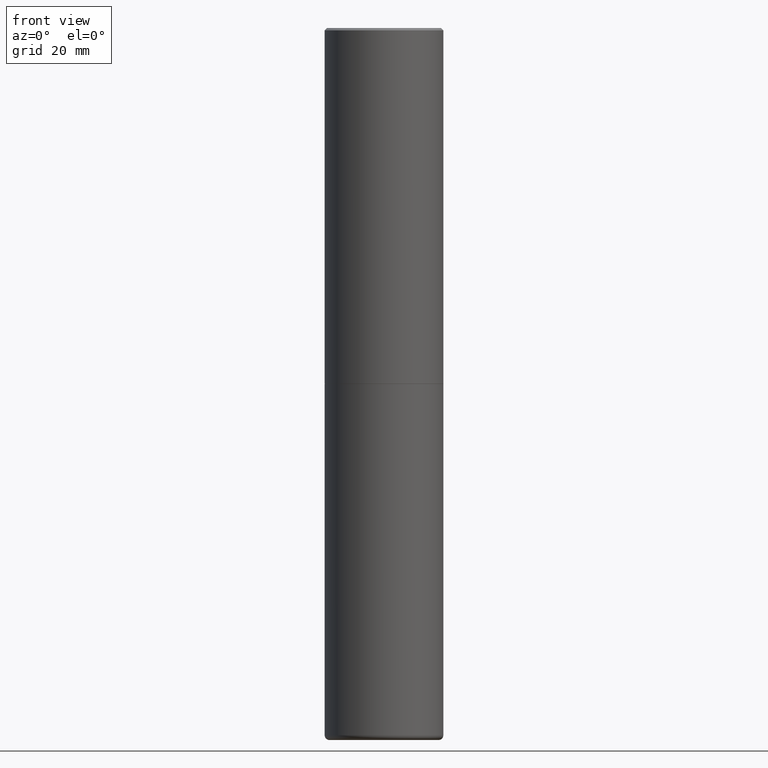
[diagram: clean part render]
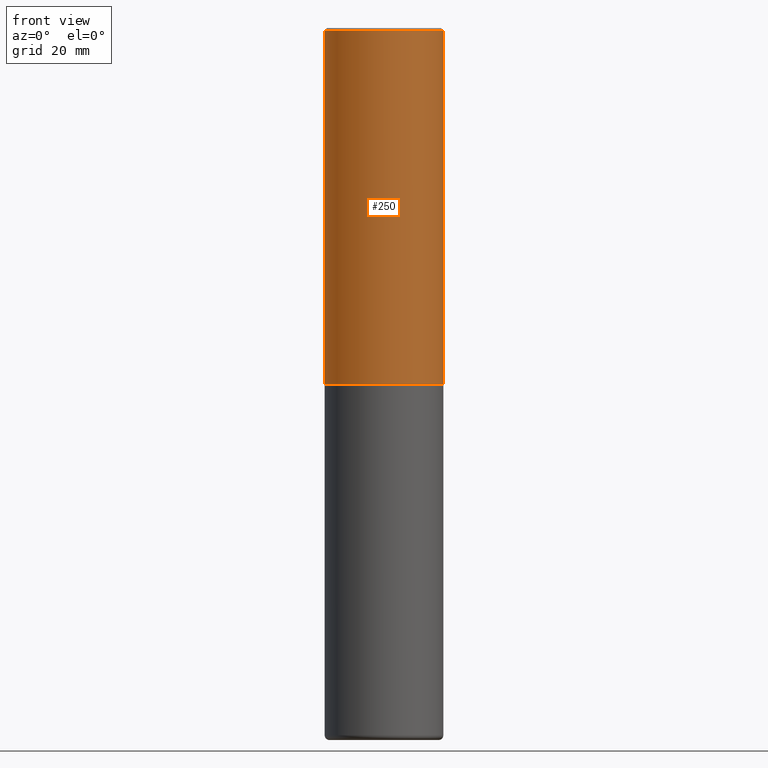
[diagram: same view with one face highlighted and labeled with its STEP entity id]
A machine part, front view. The second image highlights one B-rep face of the part: STEP entity #250.
In plain terms, the highlighted cylindrical surface (partial cylindrical patch) has radius 12.5006 mm, axis along (-0, 0, 1).
Its self-contained STEP definition (entity closure, byte-faithful):
#5 = AXIS2_PLACEMENT_3D ( 'NONE', #223, #346, #62 ) ;
#8 = VERTEX_POINT ( 'NONE', #305 ) ;
#17 = ORIENTED_EDGE ( 'NONE', *, *, #120, .T. ) ;
#20 = FACE_OUTER_BOUND ( 'NONE', #230, .T. ) ;
#22 = LINE ( 'NONE', #90, #212 ) ;
#24 = LINE ( 'NONE', #148, #102 ) ;
#30 = VERTEX_POINT ( 'NONE', #108 ) ;
#34 = DIRECTION ( 'NONE',  ( 1.000000000000000000, -6.982962677686265922E-15, 4.876176775795935793E-29 ) ) ;
#62 = DIRECTION ( 'NONE',  ( 1.000000000000000000, -6.982962677686265922E-15, 0.000000000000000000 ) ) ;
#65 = CARTESIAN_POINT ( 'NONE',  ( 0.000000000000000000, 0.000000000000000000, 0.000000000000000000 ) ) ;
#90 = CARTESIAN_POINT ( 'NONE',  ( -0.4921500000000000874, 3.496936074043333686E-15, -2.420853904668952350E-29 ) ) ;
#97 = DIRECTION ( 'NONE',  ( -2.445468806185136597E-29, 3.491481338843145583E-15, 1.000000000000000000 ) ) ;
#102 = VECTOR ( 'NONE', #403, 39.37007874015748143 ) ;
#108 = CARTESIAN_POINT ( 'NONE',  ( -0.4921500000000003094, -1.690881473276751010E-15, -2.951700000000000212 ) ) ;
#120 = EDGE_CURVE ( 'NONE', #8, #306, #24, .T. ) ;
#122 = DIRECTION ( 'NONE',  ( -2.445468806185136877E-29, 3.491481338843145188E-15, 1.000000000000000000 ) ) ;
#146 = EDGE_CURVE ( 'NONE', #30, #311, #22, .T. ) ;
#148 = CARTESIAN_POINT ( 'NONE',  ( 0.4921500000000000874, -3.436665081823296565E-15, 2.399810400207970163E-29 ) ) ;
#154 = EDGE_CURVE ( 'NONE', #311, #306, #296, .T. ) ;
#155 = CARTESIAN_POINT ( 'NONE',  ( -0.4921499999999999764, 3.366835455046432478E-15, -0.02000000000000010797 ) ) ;
#169 = AXIS2_PLACEMENT_3D ( 'NONE', #341, #307, #310 ) ;
#184 = CIRCLE ( 'NONE', #5, 0.4921500000000003094 ) ;
#212 = VECTOR ( 'NONE', #122, 39.37007874015748143 ) ;
#223 = CARTESIAN_POINT ( 'NONE',  ( 7.218290275216666916E-29, -1.030580546786331359E-14, -2.951700000000000212 ) ) ;
#229 = ORIENTED_EDGE ( 'NONE', *, *, #365, .T. ) ;
#230 = EDGE_LOOP ( 'NONE', ( #233, #229, #17, #313 ) ) ;
#233 = ORIENTED_EDGE ( 'NONE', *, *, #146, .F. ) ;
#250 = ADVANCED_FACE ( 'NONE', ( #20 ), #276, .T. ) ;
#276 = CYLINDRICAL_SURFACE ( 'NONE', #364, 0.4921500000000000874 ) ;
#296 = CIRCLE ( 'NONE', #169, 0.4921499999999999764 ) ;
#305 = CARTESIAN_POINT ( 'NONE',  ( 0.4921500000000003094, -1.374247054968661252E-14, -2.951700000000000212 ) ) ;
#306 = VERTEX_POINT ( 'NONE', #385 ) ;
#307 = DIRECTION ( 'NONE',  ( -2.445468806185136597E-29, 3.491481338843145583E-15, 1.000000000000000000 ) ) ;
#310 = DIRECTION ( 'NONE',  ( 1.000000000000000000, -6.982962677686265922E-15, 0.000000000000000000 ) ) ;
#311 = VERTEX_POINT ( 'NONE', #155 ) ;
#313 = ORIENTED_EDGE ( 'NONE', *, *, #154, .F. ) ;
#341 = CARTESIAN_POINT ( 'NONE',  ( 4.890937612370299433E-31, -6.982962677686328587E-17, -0.02000000000000010797 ) ) ;
#346 = DIRECTION ( 'NONE',  ( -2.445468806185136597E-29, 3.491481338843145583E-15, 1.000000000000000000 ) ) ;
#364 = AXIS2_PLACEMENT_3D ( 'NONE', #65, #97, #34 ) ;
#365 = EDGE_CURVE ( 'NONE', #30, #8, #184, .T. ) ;
#385 = CARTESIAN_POINT ( 'NONE',  ( 0.4921499999999999764, -3.446223716380122349E-15, -0.02000000000000010797 ) ) ;
#403 = DIRECTION ( 'NONE',  ( -2.445468806185136877E-29, 3.491481338843145188E-15, 1.000000000000000000 ) ) ;